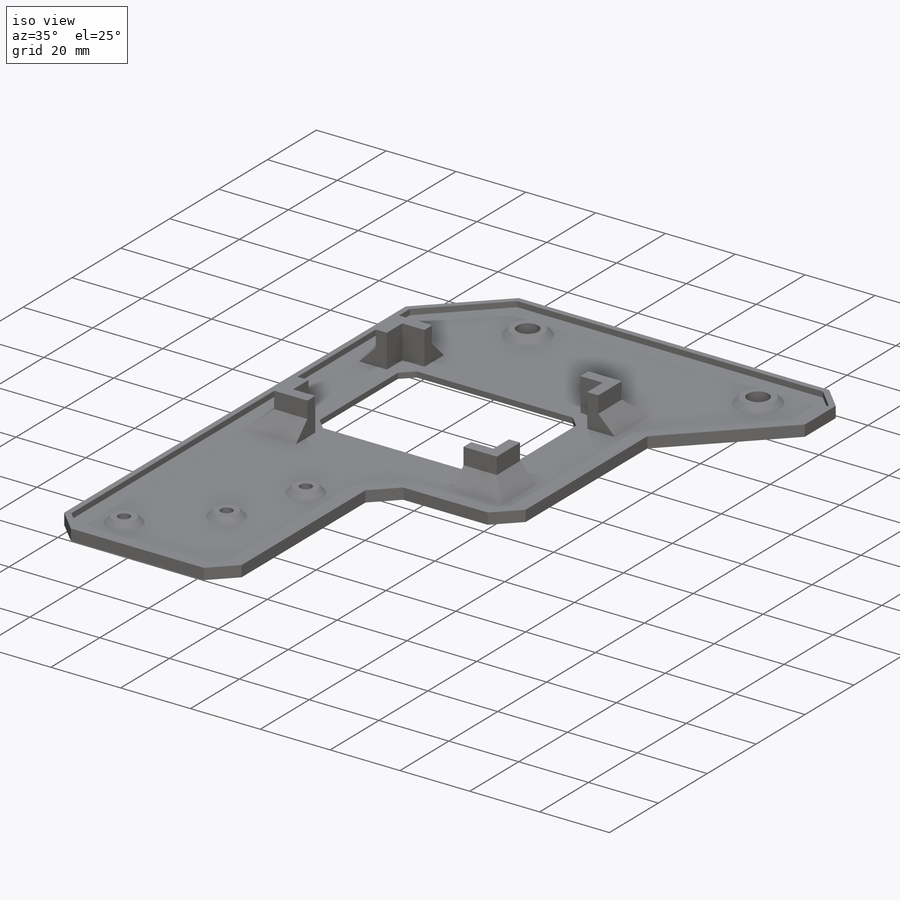
[diagram: iso view]
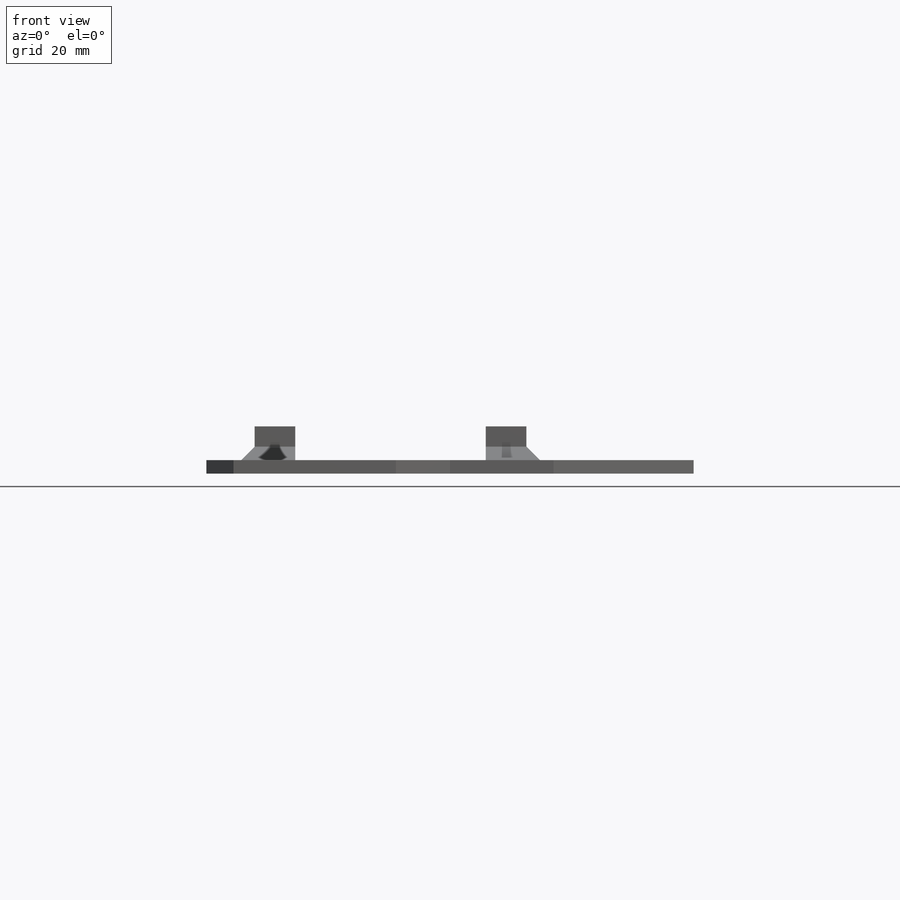
[diagram: front view]
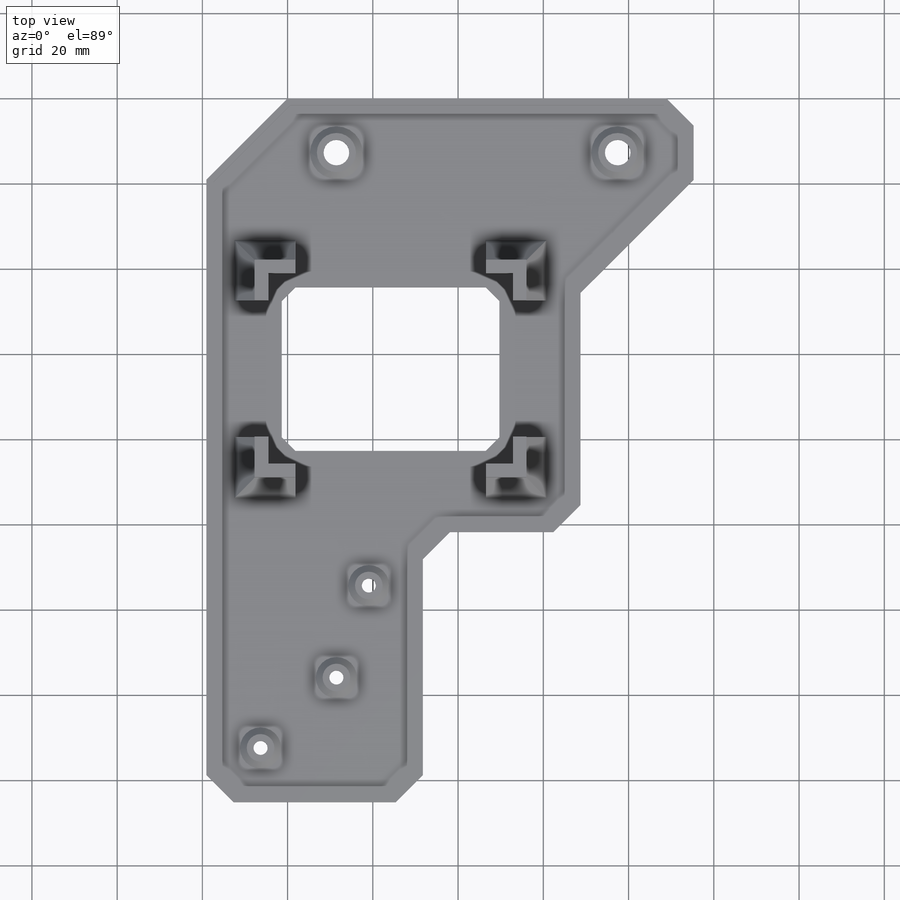
[diagram: top view]
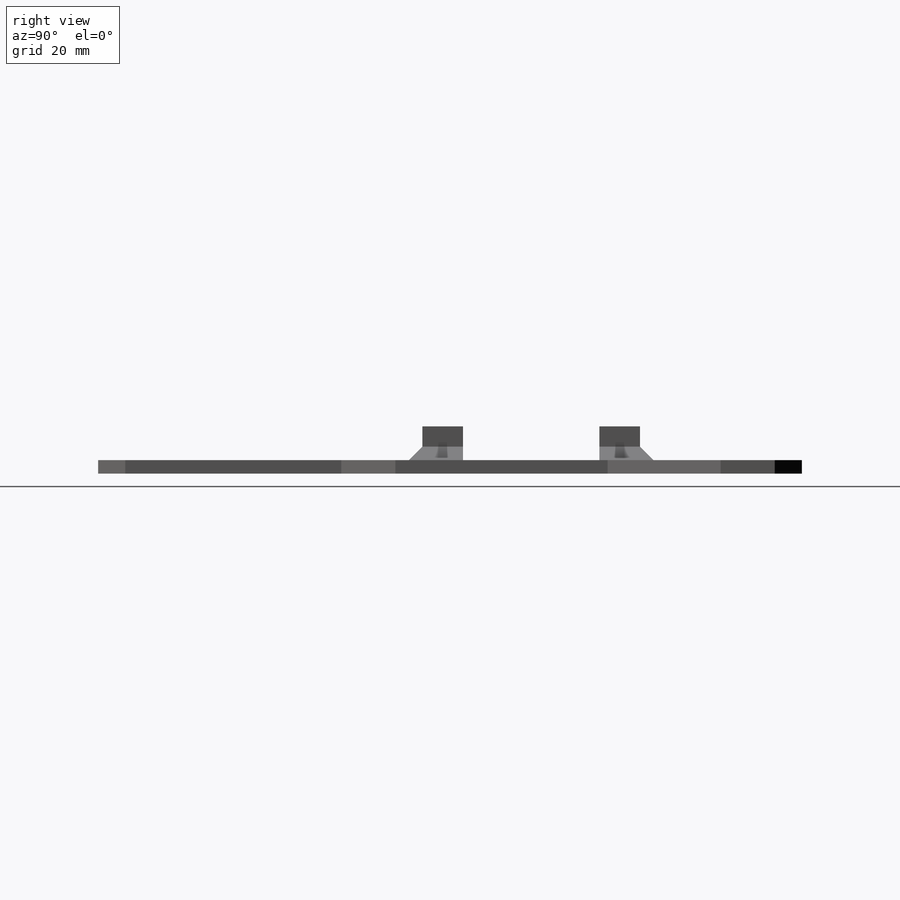
[diagram: right view]
SOLIDWORKS PART (.sldprt)
format: sldprt  version: not decoded by parser v0  size: 464,896 bytes
history: native  units: mm
features: sketch x8, extrude x4, cut_extrude x4, chamfer x3, material x1 (+12 scaffold rows collapsed)
feature tree (32):
  scaffold x12  (default folders/planes/origin — collapsed)
  material  "Material <not specified>"
  sketch  "Sketch1"  dims[c1.D1=44.45mm c1.D2=57.15mm c1.D3=30.1625mm c1.D4=44.45mm c2.D1=57.15mm c2.D2=45.0deg c3.D2=~9.676724mm c4.D2=45.0deg c4.D3=~11.923253mm c5.D3=45.0deg c5.D4=114.3mm c5.D5=19.05mm c5.D6=~157.809444mm c6.D6=225.0deg c7.D6=19.05mm c7.D3=19.05mm c7.D5=~6.962168mm c8.D5=45.0deg c8.D7=6.35mm c8.D1=57.15mm c8.D8=~5.107575mm c9.D8=45.0deg c9.D9=6.35mm c9.D10=88.9mm c10.D10=~0.663342deg c10.D11=~88.905958mm c11.D10=165.1mm]
  extrude  "Boss-Extrude1"  Depth=1.5875mm
  sketch  "Sketch2"  dims[c1.D1=6.0mm c1.D3=6.0mm c1.D2=33.0mm c2.D3=12.7mm]
  cut_extrude  "Cut-Extrude1"  [1 undecoded]
  sketch  "Sketch8"  dims[D3=3.302mm D4=3.302mm D1=25.4mm D2=38.1mm D5=12.7mm D6=12.7mm]
  cut_extrude  "Cut-Extrude5"  [1 undecoded]
  sketch  "Sketch9"  dims[c1.D1=3.175mm c1.D2=57.404mm c1.D3=44.704mm c1.D4=9.525mm c1.D5=~152.640407mm c2.D5=~0.469195deg c3.D5=12.7mm c3.D6=50.8mm]
  extrude  "Boss-Extrude6"  Depth=9.525mm
  sketch  "Sketch12"  dims[c1.D13=3.302mm c1.D1=3.175mm c1.D2=3.175mm c1.D3=~66.849644mm c2.D3=45.0deg c2.D4=~51.313374mm c3.D4=45.0deg c3.D5=~51.313374mm c4.D5=45.0deg c4.D6=~31.381534mm c5.D6=45.0deg c5.D7=6.35mm c5.D8=6.35mm c5.D9=6.35mm c5.D10=12.7mm c5.D11=12.7mm c5.D12=12.7mm c5.D13=12.7mm]
  cut_extrude  "Cut-Extrude6"  [1 undecoded]
  sketch  "Sketch16"  dims[D1=1.5875mm]
  extrude  "Boss-Extrude7"  Depth=1.5875mm
  sketch  "Sketch17"  dims[D1=3.302mm D2=123.19mm]
  cut_extrude  "Cut-Extrude7"  [1 undecoded]
  sketch  "Sketch18"  dims[D1=3.175mm]
  extrude  "Boss-Extrude8"  Depth=1.5875mm
  chamfer  "Chamfer3"  Distance=1.5875mm Angle=45deg
  chamfer  "Chamfer4"  Distance=4.7625mm Angle=45deg
  chamfer  "Chamfer5"  Distance=3.175mm Angle=45deg
decode coverage: 15 of 19 modeling features carry decoded parameters
note: ~ marks probable driven/reference dimensions
note: 4 parameter values undecoded
summary: no parameter record found for 4 features
note: suppression state not decoded; provenance and decode notes live in map.json
